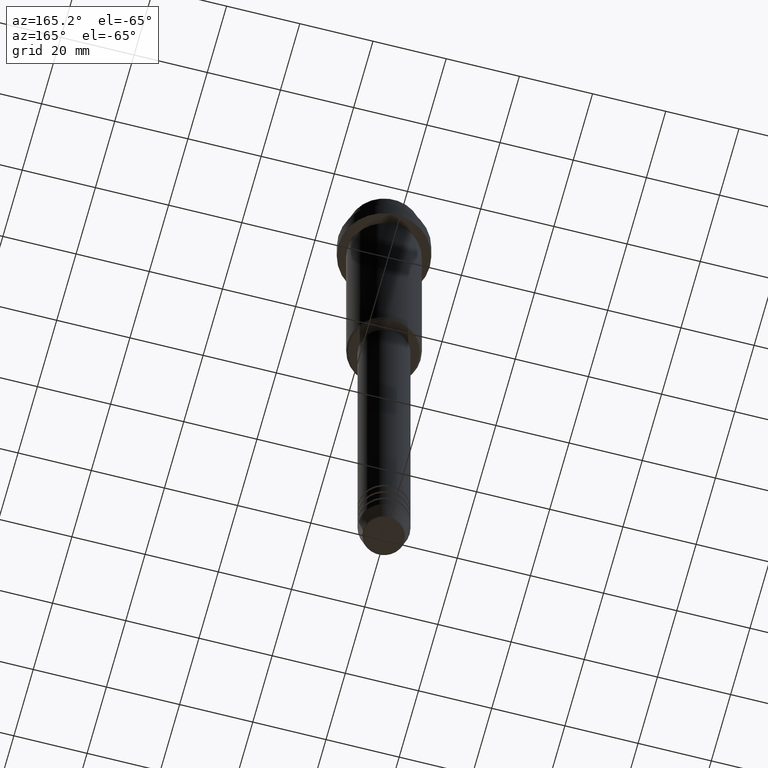
[diagram: clean part render]
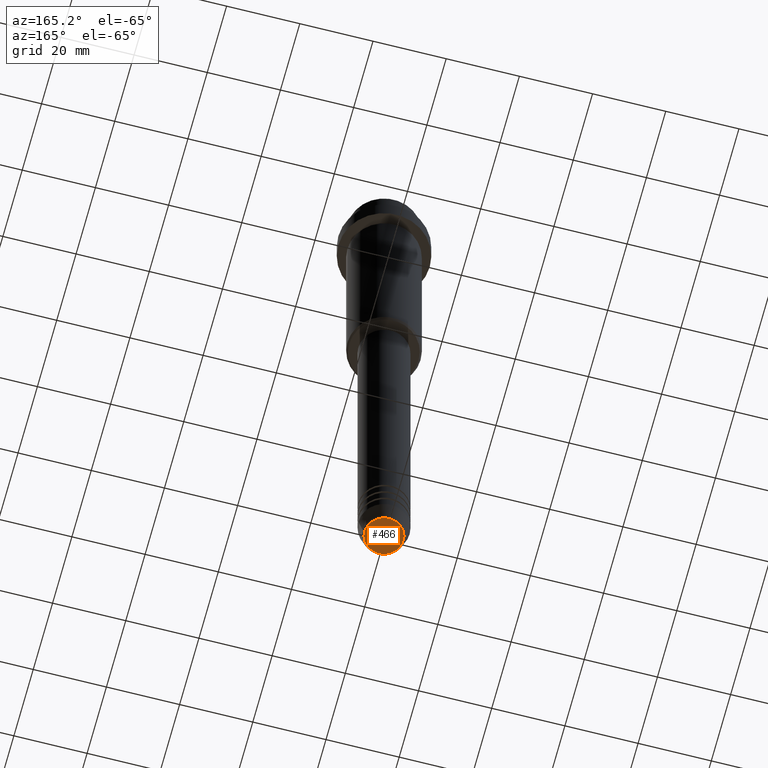
[diagram: same view with one face highlighted and labeled with its STEP entity id]
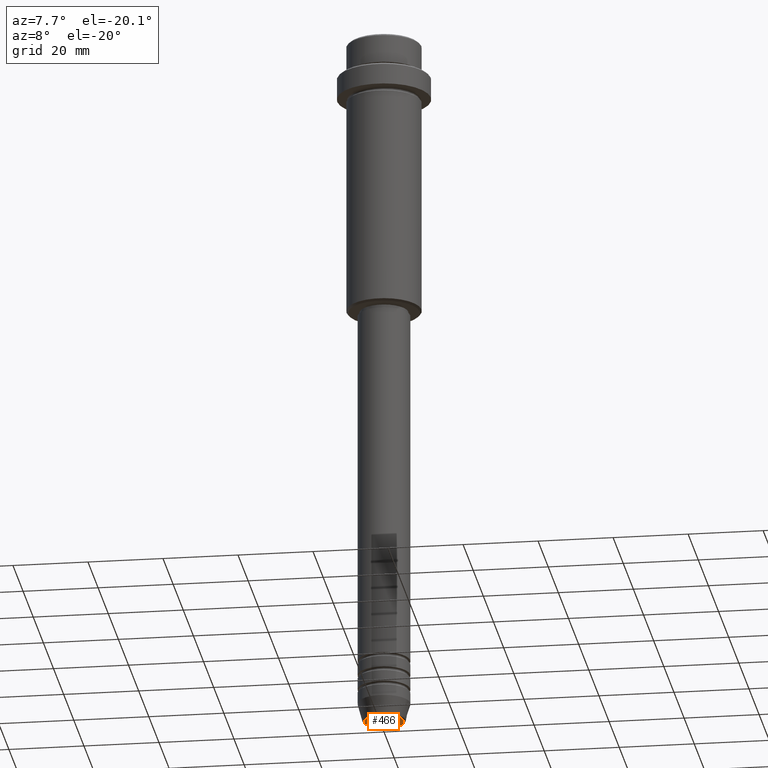
[diagram: same view with one face highlighted and labeled with its STEP entity id]
A machine part, auxiliary view. The second image highlights one B-rep face of the part: STEP entity #466.
A second angle (auxiliary view) of the same face is appended — the face is thin or edge-on in the first view.
In plain terms, the highlighted planar face has unit normal (0, -0, 1).
Its self-contained STEP definition (entity closure, byte-faithful):
#111 = DIRECTION ( 'NONE',  ( 0.000000000000000000, 0.000000000000000000, -1.000000000000000000 ) ) ;
#167 = DIRECTION ( 'NONE',  ( 1.000000000000000000, 0.000000000000000000, 0.000000000000000000 ) ) ;
#184 = CIRCLE ( 'NONE', #1294, 5.276590543854905668 ) ;
#404 = AXIS2_PLACEMENT_3D ( 'NONE', #809, #111, #1005 ) ;
#423 = AXIS2_PLACEMENT_3D ( 'NONE', #910, #1014, #786 ) ;
#466 = ADVANCED_FACE ( 'NONE', ( #1209 ), #808, .F. ) ;
#684 = VERTEX_POINT ( 'NONE', #1167 ) ;
#779 = CARTESIAN_POINT ( 'NONE',  ( 5.276590543854905668, 0.000000000000000000, -190.0000000000000000 ) ) ;
#786 = DIRECTION ( 'NONE',  ( 1.000000000000000000, 0.000000000000000000, 0.000000000000000000 ) ) ;
#808 = PLANE ( 'NONE',  #423 ) ;
#809 = CARTESIAN_POINT ( 'NONE',  ( 0.000000000000000000, 0.000000000000000000, -190.0000000000000000 ) ) ;
#827 = CARTESIAN_POINT ( 'NONE',  ( 0.000000000000000000, 0.000000000000000000, -190.0000000000000000 ) ) ;
#849 = CIRCLE ( 'NONE', #404, 5.276590543854905668 ) ;
#910 = CARTESIAN_POINT ( 'NONE',  ( 0.000000000000000000, 0.000000000000000000, -190.0000000000000000 ) ) ;
#911 = ORIENTED_EDGE ( 'NONE', *, *, #1273, .T. ) ;
#912 = EDGE_CURVE ( 'NONE', #684, #1198, #849, .T. ) ;
#1005 = DIRECTION ( 'NONE',  ( 1.000000000000000000, 0.000000000000000000, 0.000000000000000000 ) ) ;
#1014 = DIRECTION ( 'NONE',  ( 0.000000000000000000, -0.000000000000000000, 1.000000000000000000 ) ) ;
#1139 = DIRECTION ( 'NONE',  ( 0.000000000000000000, 0.000000000000000000, -1.000000000000000000 ) ) ;
#1156 = ORIENTED_EDGE ( 'NONE', *, *, #912, .T. ) ;
#1160 = EDGE_LOOP ( 'NONE', ( #911, #1156 ) ) ;
#1167 = CARTESIAN_POINT ( 'NONE',  ( -5.276590543854905668, 6.757689212787771832E-16, -190.0000000000000000 ) ) ;
#1198 = VERTEX_POINT ( 'NONE', #779 ) ;
#1209 = FACE_OUTER_BOUND ( 'NONE', #1160, .T. ) ;
#1273 = EDGE_CURVE ( 'NONE', #1198, #684, #184, .T. ) ;
#1294 = AXIS2_PLACEMENT_3D ( 'NONE', #827, #1139, #167 ) ;